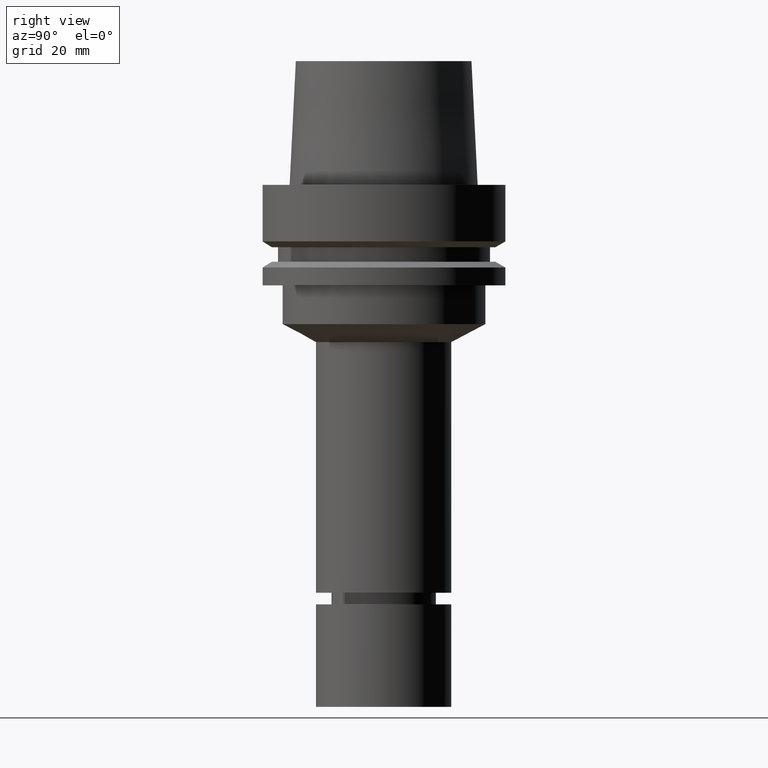
[diagram: clean part render]
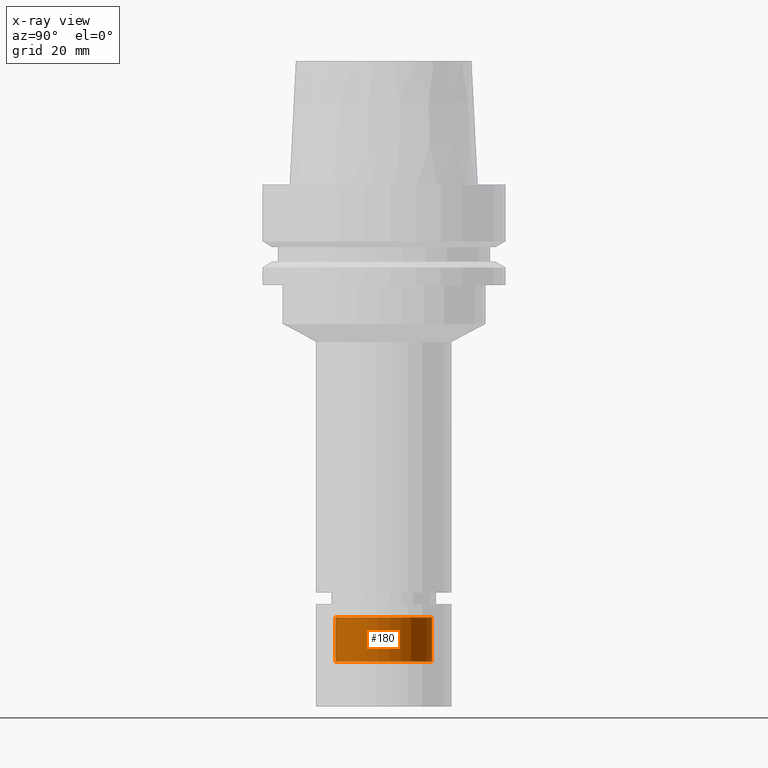
[diagram: x-ray — body ghosted, one internal face saturated and labeled with its STEP entity id]
A machine part, right view, then the same camera in x-ray: the body is ghosted and one INTERNAL B-rep face — a face not visible from any outside direction — is saturated and labeled: STEP entity #180.
In plain terms, the highlighted cylindrical surface (bore or boss wall) has radius 12.5 mm, axis along (-0, -0, 1).
Its self-contained STEP definition (entity closure, byte-faithful):
#157=EDGE_CURVE('Unnamed[1]',#337,#337,#338,.T.);
#180=ADVANCED_FACE('Unnamed[1]',(#370,#371),#372,.T.);
#194=EDGE_CURVE('Unnamed[1]',#392,#392,#393,.T.);
#337=VERTEX_POINT('',#557);
#338=CIRCLE('',#558,12.4999999999999);
#370=FACE_BOUND('',#598,.T.);
#371=FACE_BOUND('',#599,.T.);
#372=CYLINDRICAL_SURFACE('',#600,12.4999999999999);
#392=VERTEX_POINT('',#627);
#393=CIRCLE('',#628,12.4999999999998);
#557=CARTESIAN_POINT('',(6.85187894896067E-015,12.4999999999999,-111.899675134597));
#558=AXIS2_PLACEMENT_3D('',#769,#770,#771);
#598=EDGE_LOOP('',(#803));
#599=EDGE_LOOP('',(#804));
#600=AXIS2_PLACEMENT_3D('',#805,#806,#807);
#627=CARTESIAN_POINT('',(7.54962568640259E-015,12.4999999999998,-123.294744111673));
#628=AXIS2_PLACEMENT_3D('',#826,#827,#828);
#769=CARTESIAN_POINT('',(6.85187894896067E-015,1.37037578979213E-014,-111.899675134597));
#770=DIRECTION('',(-6.12323399573677E-017,-1.22464679914735E-016,1.0));
#771=DIRECTION('',(-1.23259516440783E-032,1.0,1.22464679914735E-016));
#803=ORIENTED_EDGE('',*,*,#157,.F.);
#804=ORIENTED_EDGE('',*,*,#194,.T.);
#805=CARTESIAN_POINT('',(7.20075231768163E-015,1.44015046353633E-014,-117.597209623135));
#806=DIRECTION('',(-6.12323399573677E-017,-1.22464679914735E-016,1.0));
#807=DIRECTION('',(-1.23259516440783E-032,1.0,1.22464679914735E-016));
#826=CARTESIAN_POINT('',(7.54962568640259E-015,1.50992513728052E-014,-123.294744111673));
#827=DIRECTION('',(-6.12323399573677E-017,-1.22464679914735E-016,1.0));
#828=DIRECTION('',(-1.23259516440783E-032,1.0,1.22464679914735E-016));